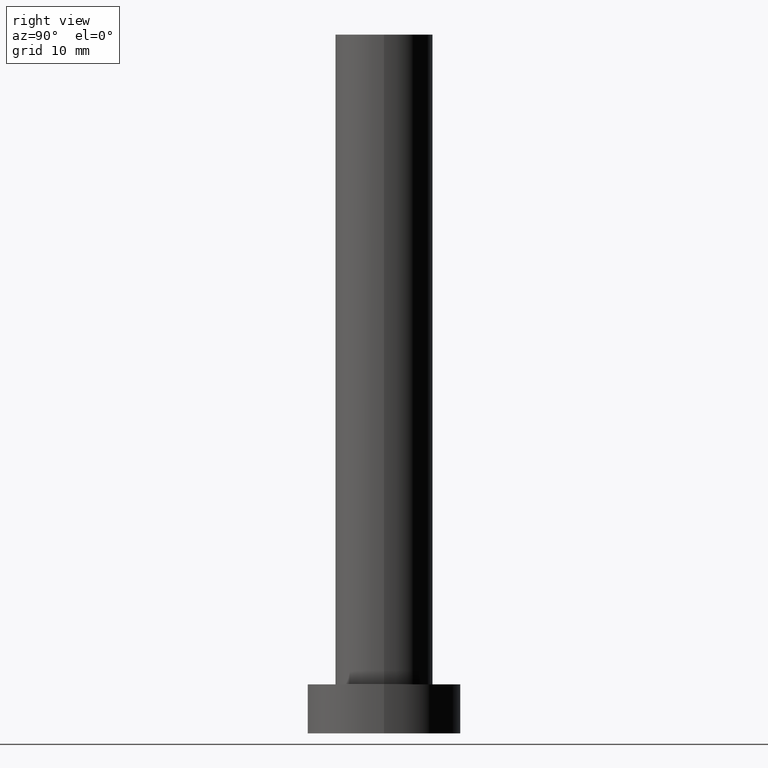
[diagram: clean part render]
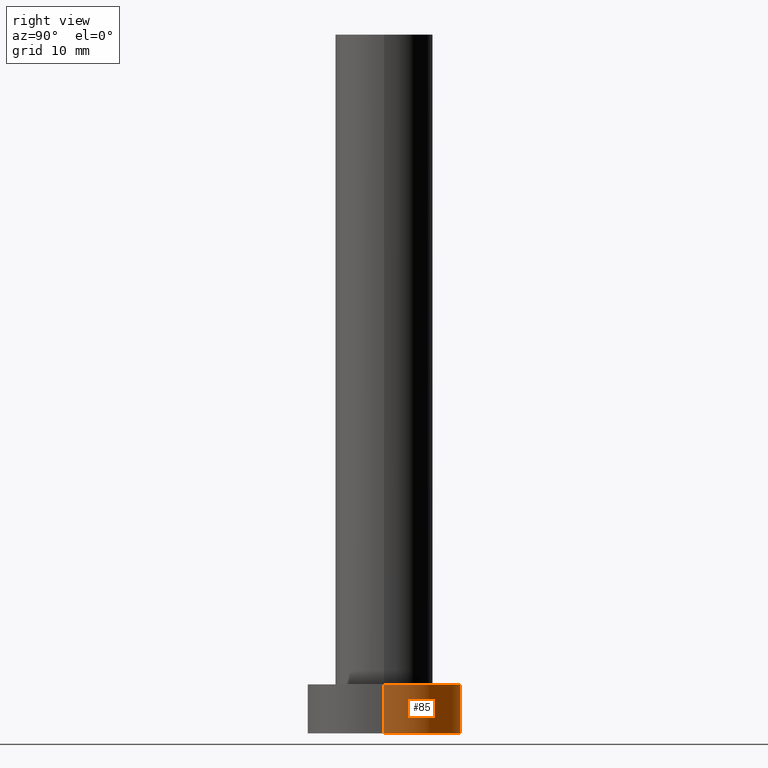
[diagram: same view with one face highlighted and labeled with its STEP entity id]
A machine part, right view. The second image highlights one B-rep face of the part: STEP entity #85.
In plain terms, the highlighted cylindrical surface (partial cylindrical patch) has radius 11 mm, axis along (-0, -0, -1).
Its self-contained STEP definition (entity closure, byte-faithful):
#3 = VECTOR ( 'NONE', #215, 1000.000000000000000 ) ;
#7 = CIRCLE ( 'NONE', #102, 11.00000000000000000 ) ;
#15 = VERTEX_POINT ( 'NONE', #96 ) ;
#17 = EDGE_CURVE ( 'NONE', #105, #15, #7, .T. ) ;
#21 = CARTESIAN_POINT ( 'NONE',  ( -11.00000000000000000, 0.000000000000000000, 7.000000000000000000 ) ) ;
#29 = CARTESIAN_POINT ( 'NONE',  ( 11.00000000000000000, 1.347111479062088405E-15, 0.000000000000000000 ) ) ;
#30 = DIRECTION ( 'NONE',  ( -0.000000000000000000, -0.000000000000000000, -1.000000000000000000 ) ) ;
#33 = DIRECTION ( 'NONE',  ( 0.000000000000000000, 0.000000000000000000, 1.000000000000000000 ) ) ;
#42 = EDGE_CURVE ( 'NONE', #151, #190, #147, .T. ) ;
#50 = CARTESIAN_POINT ( 'NONE',  ( 0.000000000000000000, 0.000000000000000000, 7.000000000000000000 ) ) ;
#60 = CARTESIAN_POINT ( 'NONE',  ( -11.00000000000000000, 0.000000000000000000, 7.000000000000000000 ) ) ;
#78 = AXIS2_PLACEMENT_3D ( 'NONE', #50, #249, #232 ) ;
#81 = LINE ( 'NONE', #237, #3 ) ;
#85 = ADVANCED_FACE ( 'NONE', ( #133 ), #194, .T. ) ;
#91 = DIRECTION ( 'NONE',  ( 1.000000000000000000, 0.000000000000000000, 0.000000000000000000 ) ) ;
#96 = CARTESIAN_POINT ( 'NONE',  ( -11.00000000000000000, 0.000000000000000000, 0.000000000000000000 ) ) ;
#102 = AXIS2_PLACEMENT_3D ( 'NONE', #170, #33, #91 ) ;
#105 = VERTEX_POINT ( 'NONE', #29 ) ;
#110 = ORIENTED_EDGE ( 'NONE', *, *, #131, .T. ) ;
#131 = EDGE_CURVE ( 'NONE', #151, #105, #81, .T. ) ;
#133 = FACE_OUTER_BOUND ( 'NONE', #150, .T. ) ;
#138 = LINE ( 'NONE', #21, #154 ) ;
#144 = ORIENTED_EDGE ( 'NONE', *, *, #201, .F. ) ;
#147 = CIRCLE ( 'NONE', #78, 11.00000000000000000 ) ;
#150 = EDGE_LOOP ( 'NONE', ( #246, #110, #244, #144 ) ) ;
#151 = VERTEX_POINT ( 'NONE', #236 ) ;
#154 = VECTOR ( 'NONE', #174, 1000.000000000000000 ) ;
#166 = AXIS2_PLACEMENT_3D ( 'NONE', #254, #30, #210 ) ;
#170 = CARTESIAN_POINT ( 'NONE',  ( 0.000000000000000000, 0.000000000000000000, 0.000000000000000000 ) ) ;
#174 = DIRECTION ( 'NONE',  ( -0.000000000000000000, -0.000000000000000000, -1.000000000000000000 ) ) ;
#190 = VERTEX_POINT ( 'NONE', #60 ) ;
#194 = CYLINDRICAL_SURFACE ( 'NONE', #166, 11.00000000000000000 ) ;
#201 = EDGE_CURVE ( 'NONE', #190, #15, #138, .T. ) ;
#210 = DIRECTION ( 'NONE',  ( -1.000000000000000000, 0.000000000000000000, 0.000000000000000000 ) ) ;
#215 = DIRECTION ( 'NONE',  ( -0.000000000000000000, -0.000000000000000000, -1.000000000000000000 ) ) ;
#232 = DIRECTION ( 'NONE',  ( 1.000000000000000000, 0.000000000000000000, 0.000000000000000000 ) ) ;
#236 = CARTESIAN_POINT ( 'NONE',  ( 11.00000000000000000, 1.347111479062088405E-15, 7.000000000000000000 ) ) ;
#237 = CARTESIAN_POINT ( 'NONE',  ( 11.00000000000000000, 1.347111479062088405E-15, 7.000000000000000000 ) ) ;
#244 = ORIENTED_EDGE ( 'NONE', *, *, #17, .T. ) ;
#246 = ORIENTED_EDGE ( 'NONE', *, *, #42, .F. ) ;
#249 = DIRECTION ( 'NONE',  ( 0.000000000000000000, 0.000000000000000000, 1.000000000000000000 ) ) ;
#254 = CARTESIAN_POINT ( 'NONE',  ( 0.000000000000000000, 0.000000000000000000, 7.000000000000000000 ) ) ;